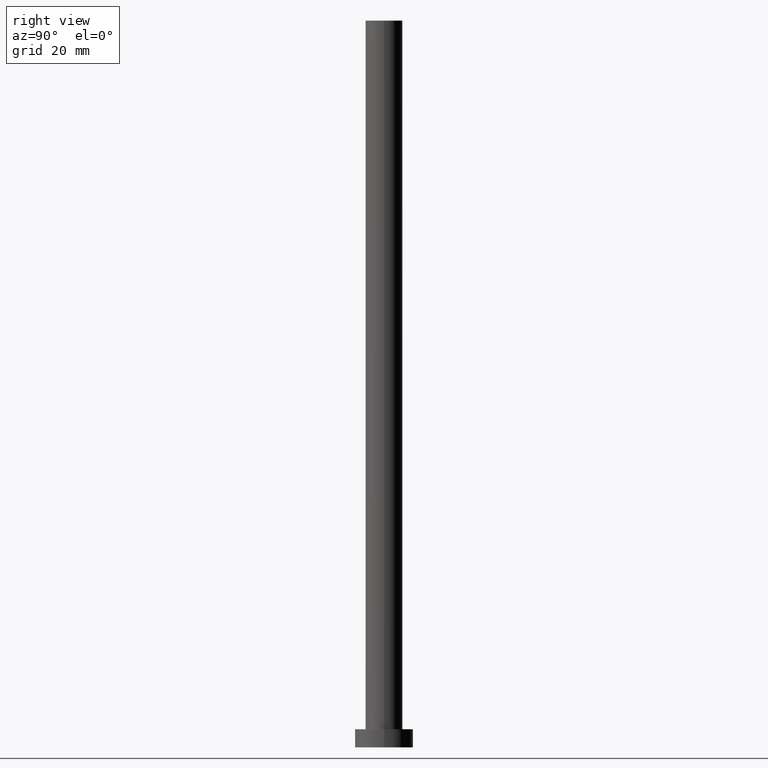
[diagram: clean part render]
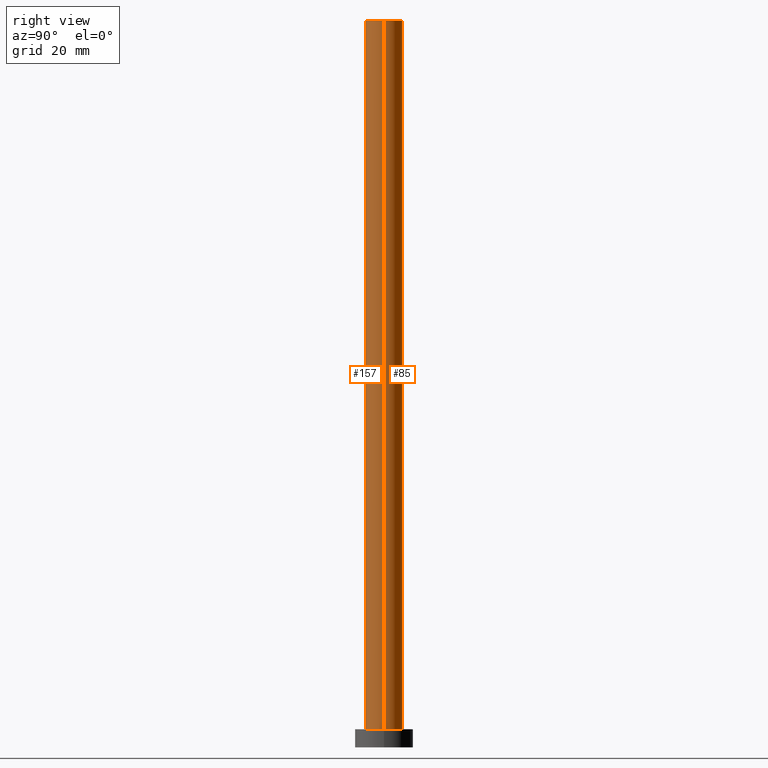
[diagram: same view with one multi-face feature highlighted, each face labeled with its STEP entity id]
A machine part, right view. The highlighted faces form ONE feature: a constant-radius fillet chain: 2 tangent blend faces with common blend radius 5.1 mm. The faces share edges in the B-rep.
Their STEP definitions:
[1] entity #85 (Cylinder):
#5 = FACE_OUTER_BOUND ( 'NONE', #208, .T. ) ;
#12 = CARTESIAN_POINT ( 'NONE',  ( 0.000000000000000000, 0.000000000000000000, 5.000000000000000000 ) ) ;
#14 = VERTEX_POINT ( 'NONE', #24 ) ;
#18 = DIRECTION ( 'NONE',  ( 1.000000000000000000, 0.000000000000000000, 0.000000000000000000 ) ) ;
#20 = AXIS2_PLACEMENT_3D ( 'NONE', #12, #94, #18 ) ;
#22 = VECTOR ( 'NONE', #90, 1000.000000000000000 ) ;
#24 = CARTESIAN_POINT ( 'NONE',  ( -5.100000000000001421, 0.000000000000000000, 200.0000000000000000 ) ) ;
#27 = CIRCLE ( 'NONE', #177, 5.100000000000001421 ) ;
#36 = EDGE_CURVE ( 'NONE', #89, #14, #27, .T. ) ;
#59 = CARTESIAN_POINT ( 'NONE',  ( 0.000000000000000000, 0.000000000000000000, 200.0000000000000000 ) ) ;
#68 = DIRECTION ( 'NONE',  ( -1.000000000000000000, 0.000000000000000000, 0.000000000000000000 ) ) ;
#74 = ORIENTED_EDGE ( 'NONE', *, *, #254, .T. ) ;
#75 = CARTESIAN_POINT ( 'NONE',  ( 5.100000000000001421, 6.245698675651502811E-16, 5.000000000000000000 ) ) ;
#85 = ADVANCED_FACE ( 'NONE', ( #5 ), #206, .T. ) ;
#89 = VERTEX_POINT ( 'NONE', #109 ) ;
#90 = DIRECTION ( 'NONE',  ( -0.000000000000000000, -0.000000000000000000, -1.000000000000000000 ) ) ;
#94 = DIRECTION ( 'NONE',  ( 0.000000000000000000, 0.000000000000000000, 1.000000000000000000 ) ) ;
#95 = EDGE_CURVE ( 'NONE', #14, #218, #193, .T. ) ;
#109 = CARTESIAN_POINT ( 'NONE',  ( 5.100000000000001421, 6.245698675651502811E-16, 200.0000000000000000 ) ) ;
#119 = CARTESIAN_POINT ( 'NONE',  ( -5.100000000000001421, 0.000000000000000000, 5.000000000000000000 ) ) ;
#121 = CARTESIAN_POINT ( 'NONE',  ( 0.000000000000000000, 0.000000000000000000, 200.0000000000000000 ) ) ;
#125 = DIRECTION ( 'NONE',  ( 1.000000000000000000, 0.000000000000000000, 0.000000000000000000 ) ) ;
#136 = CARTESIAN_POINT ( 'NONE',  ( 5.100000000000001421, 6.245698675651502811E-16, 200.0000000000000000 ) ) ;
#137 = CIRCLE ( 'NONE', #20, 5.100000000000001421 ) ;
#138 = DIRECTION ( 'NONE',  ( -0.000000000000000000, -0.000000000000000000, -1.000000000000000000 ) ) ;
#139 = ORIENTED_EDGE ( 'NONE', *, *, #95, .F. ) ;
#147 = DIRECTION ( 'NONE',  ( -0.000000000000000000, -0.000000000000000000, -1.000000000000000000 ) ) ;
#161 = LINE ( 'NONE', #136, #22 ) ;
#177 = AXIS2_PLACEMENT_3D ( 'NONE', #121, #207, #125 ) ;
#190 = ORIENTED_EDGE ( 'NONE', *, *, #252, .T. ) ;
#192 = VERTEX_POINT ( 'NONE', #75 ) ;
#193 = LINE ( 'NONE', #214, #211 ) ;
#206 = CYLINDRICAL_SURFACE ( 'NONE', #232, 5.100000000000001421 ) ;
#207 = DIRECTION ( 'NONE',  ( 0.000000000000000000, 0.000000000000000000, 1.000000000000000000 ) ) ;
#208 = EDGE_LOOP ( 'NONE', ( #250, #74, #190, #139 ) ) ;
#211 = VECTOR ( 'NONE', #138, 1000.000000000000000 ) ;
#214 = CARTESIAN_POINT ( 'NONE',  ( -5.100000000000001421, 0.000000000000000000, 200.0000000000000000 ) ) ;
#218 = VERTEX_POINT ( 'NONE', #119 ) ;
#232 = AXIS2_PLACEMENT_3D ( 'NONE', #59, #147, #68 ) ;
#250 = ORIENTED_EDGE ( 'NONE', *, *, #36, .F. ) ;
#252 = EDGE_CURVE ( 'NONE', #192, #218, #137, .T. ) ;
#254 = EDGE_CURVE ( 'NONE', #89, #192, #161, .T. ) ;
[2] entity #157 (Cylinder):
#1 = AXIS2_PLACEMENT_3D ( 'NONE', #143, #224, #202 ) ;
#2 = AXIS2_PLACEMENT_3D ( 'NONE', #117, #198, #238 ) ;
#4 = ORIENTED_EDGE ( 'NONE', *, *, #95, .T. ) ;
#14 = VERTEX_POINT ( 'NONE', #24 ) ;
#22 = VECTOR ( 'NONE', #90, 1000.000000000000000 ) ;
#24 = CARTESIAN_POINT ( 'NONE',  ( -5.100000000000001421, 0.000000000000000000, 200.0000000000000000 ) ) ;
#30 = ORIENTED_EDGE ( 'NONE', *, *, #254, .F. ) ;
#73 = CYLINDRICAL_SURFACE ( 'NONE', #2, 5.100000000000001421 ) ;
#75 = CARTESIAN_POINT ( 'NONE',  ( 5.100000000000001421, 6.245698675651502811E-16, 5.000000000000000000 ) ) ;
#87 = AXIS2_PLACEMENT_3D ( 'NONE', #96, #141, #160 ) ;
#89 = VERTEX_POINT ( 'NONE', #109 ) ;
#90 = DIRECTION ( 'NONE',  ( -0.000000000000000000, -0.000000000000000000, -1.000000000000000000 ) ) ;
#95 = EDGE_CURVE ( 'NONE', #14, #218, #193, .T. ) ;
#96 = CARTESIAN_POINT ( 'NONE',  ( 0.000000000000000000, 0.000000000000000000, 5.000000000000000000 ) ) ;
#98 = CIRCLE ( 'NONE', #1, 5.100000000000001421 ) ;
#105 = EDGE_CURVE ( 'NONE', #218, #192, #178, .T. ) ;
#109 = CARTESIAN_POINT ( 'NONE',  ( 5.100000000000001421, 6.245698675651502811E-16, 200.0000000000000000 ) ) ;
#115 = FACE_OUTER_BOUND ( 'NONE', #221, .T. ) ;
#117 = CARTESIAN_POINT ( 'NONE',  ( 0.000000000000000000, 0.000000000000000000, 200.0000000000000000 ) ) ;
#119 = CARTESIAN_POINT ( 'NONE',  ( -5.100000000000001421, 0.000000000000000000, 5.000000000000000000 ) ) ;
#136 = CARTESIAN_POINT ( 'NONE',  ( 5.100000000000001421, 6.245698675651502811E-16, 200.0000000000000000 ) ) ;
#138 = DIRECTION ( 'NONE',  ( -0.000000000000000000, -0.000000000000000000, -1.000000000000000000 ) ) ;
#141 = DIRECTION ( 'NONE',  ( 0.000000000000000000, 0.000000000000000000, 1.000000000000000000 ) ) ;
#143 = CARTESIAN_POINT ( 'NONE',  ( 0.000000000000000000, 0.000000000000000000, 200.0000000000000000 ) ) ;
#157 = ADVANCED_FACE ( 'NONE', ( #115 ), #73, .T. ) ;
#160 = DIRECTION ( 'NONE',  ( 1.000000000000000000, 0.000000000000000000, 0.000000000000000000 ) ) ;
#161 = LINE ( 'NONE', #136, #22 ) ;
#178 = CIRCLE ( 'NONE', #87, 5.100000000000001421 ) ;
#179 = EDGE_CURVE ( 'NONE', #14, #89, #98, .T. ) ;
#192 = VERTEX_POINT ( 'NONE', #75 ) ;
#193 = LINE ( 'NONE', #214, #211 ) ;
#198 = DIRECTION ( 'NONE',  ( -0.000000000000000000, -0.000000000000000000, -1.000000000000000000 ) ) ;
#202 = DIRECTION ( 'NONE',  ( 1.000000000000000000, 0.000000000000000000, 0.000000000000000000 ) ) ;
#211 = VECTOR ( 'NONE', #138, 1000.000000000000000 ) ;
#214 = CARTESIAN_POINT ( 'NONE',  ( -5.100000000000001421, 0.000000000000000000, 200.0000000000000000 ) ) ;
#218 = VERTEX_POINT ( 'NONE', #119 ) ;
#221 = EDGE_LOOP ( 'NONE', ( #30, #230, #4, #237 ) ) ;
#224 = DIRECTION ( 'NONE',  ( 0.000000000000000000, 0.000000000000000000, 1.000000000000000000 ) ) ;
#230 = ORIENTED_EDGE ( 'NONE', *, *, #179, .F. ) ;
#237 = ORIENTED_EDGE ( 'NONE', *, *, #105, .T. ) ;
#238 = DIRECTION ( 'NONE',  ( -1.000000000000000000, 0.000000000000000000, 0.000000000000000000 ) ) ;
#254 = EDGE_CURVE ( 'NONE', #89, #192, #161, .T. ) ;